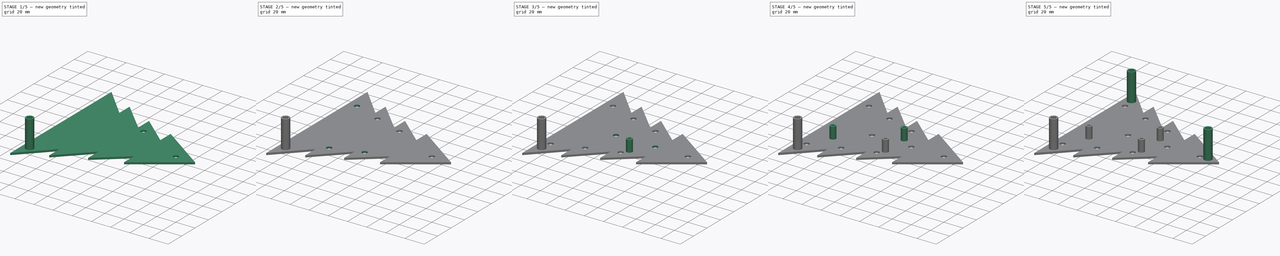
[diagram: build sequence overview — one tinted view per stage of 5, left to right]
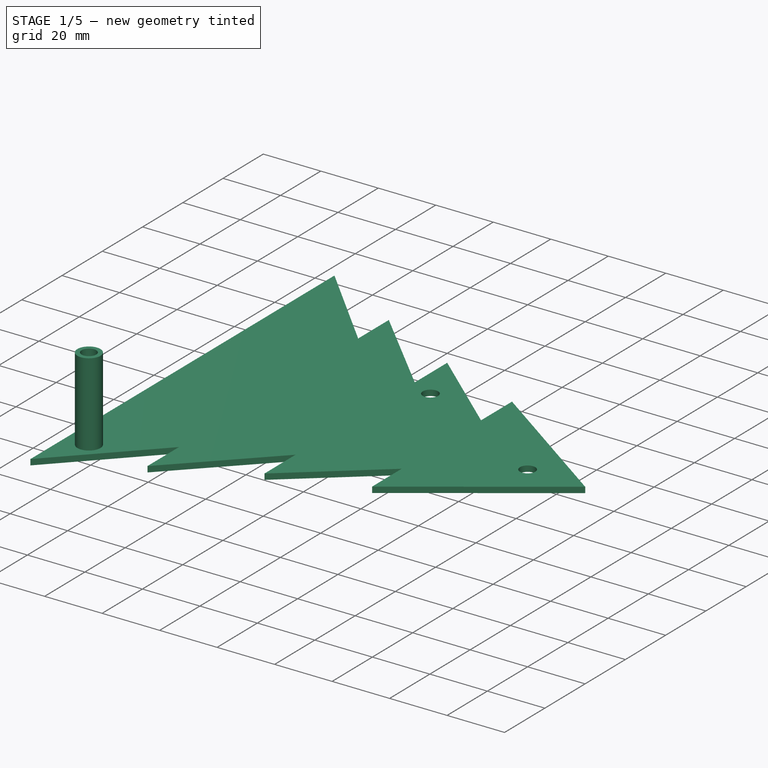
[diagram: stage 1 of 5 — iso view after this stage's code; geometry added in this stage tinted green]
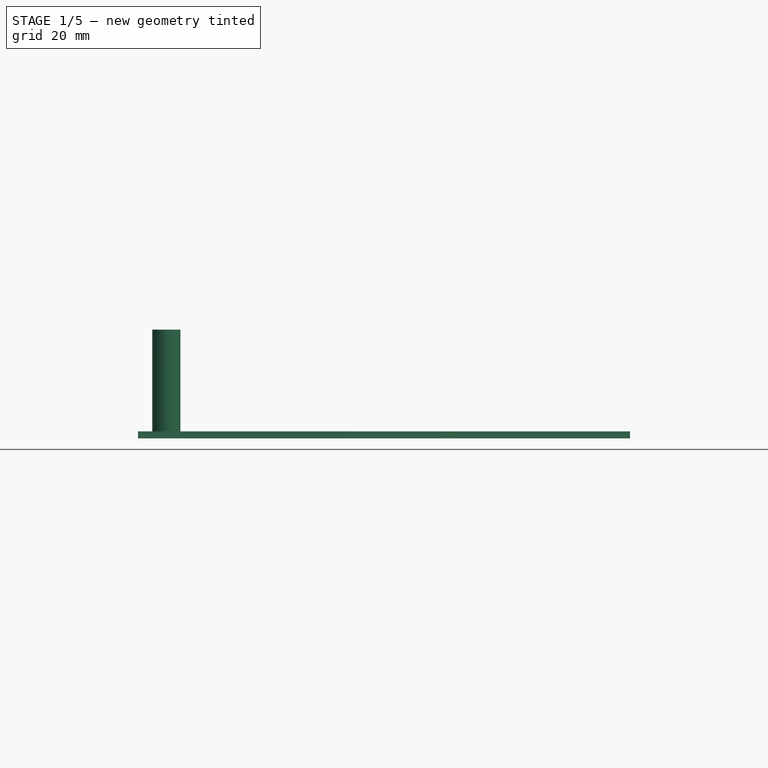
[diagram: stage 1 of 5 — front view after this stage's code; geometry added in this stage tinted green]
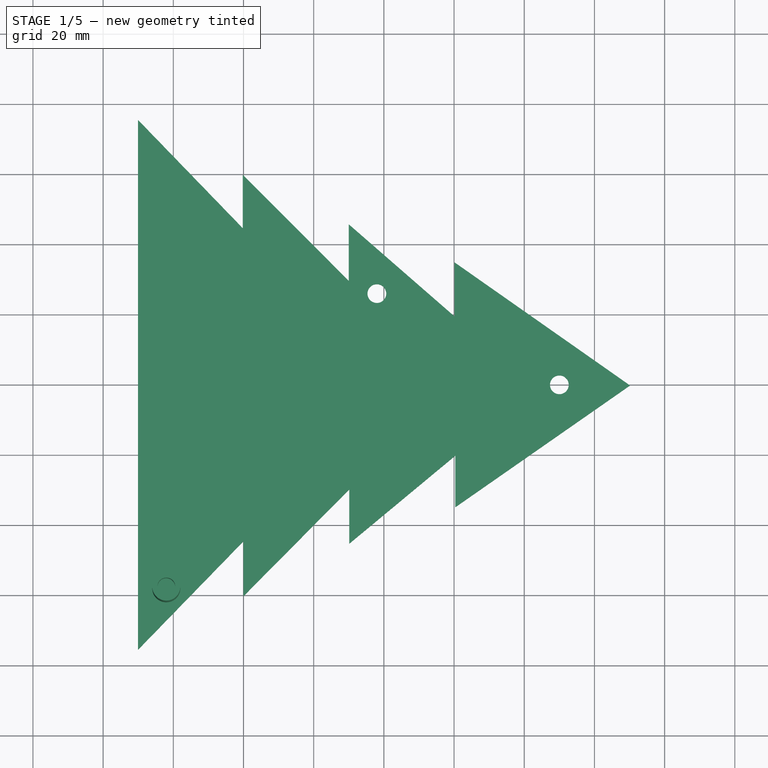
[diagram: stage 1 of 5 — top view after this stage's code; geometry added in this stage tinted green]
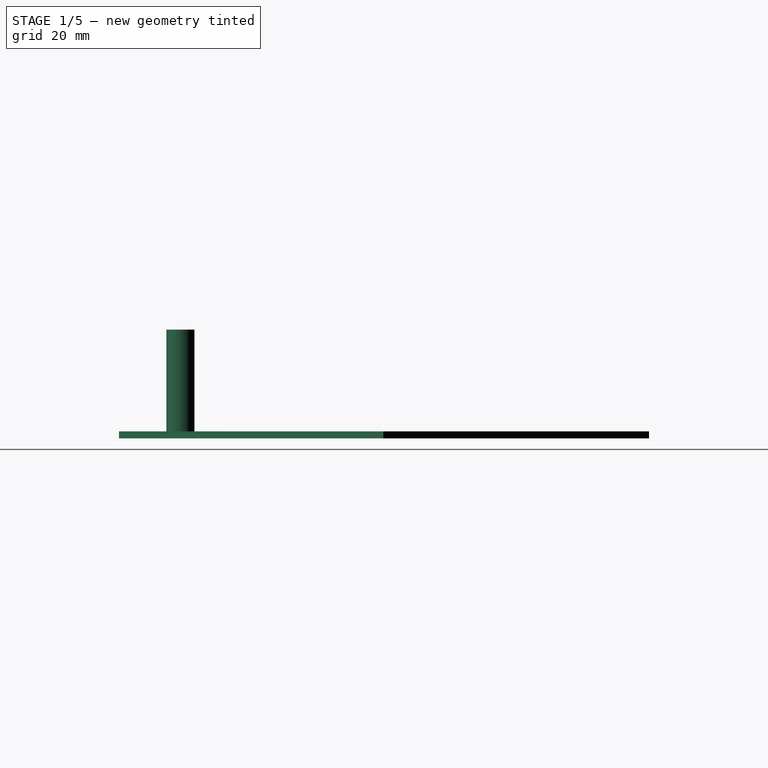
[diagram: stage 1 of 5 — right view after this stage's code; geometry added in this stage tinted green]
FCSTD DOCUMENT  (FreeCAD 0.14R3702 (Git))
Label: piece1M
License: CC-BY 3.0
LicenseURL: http://creativecommons.org/licenses/by/3.0/
objects: Part::Cylinder×21, Part::Cut×15, Part::MultiFuse×5, Sketcher::SketchObject×1, PartDesign::Pad×1, Part::Fuse×1
note: 45 computed .brp shape members not serialized (recipe doc carries the construction recipe); baked Part::Feature solids carry a one-line shape summary decoded from their .brp

FEATURE [Sketcher::SketchObject] Sketch
  sketch-geometry (15):
    g0: LineSegment StartX=-130.081 StartY=75.5194 StartZ=0 EndX=-130.081 EndY=-75.5262 EndZ=0
    g1: LineSegment StartX=-130.081 StartY=75.5194 StartZ=0 EndX=-100.203 EndY=44.6299 EndZ=0
    g2: LineSegment StartX=-100.203 StartY=44.6299 StartZ=0 EndX=-100.203 EndY=59.8569 EndZ=0
    g3: LineSegment StartX=-100.203 StartY=59.8569 StartZ=0 EndX=-70.0242 EndY=29.6287 EndZ=0
    g4: LineSegment StartX=-70.0242 StartY=29.6287 StartZ=0 EndX=-70.0242 EndY=45.7666 EndZ=0
    g5: LineSegment StartX=-70.0242 StartY=45.7666 StartZ=0 EndX=-39.8749 EndY=19.5074 EndZ=0
    g6: LineSegment StartX=-39.8749 StartY=19.5074 StartZ=0 EndX=-39.8749 EndY=34.9099 EndZ=0
    g7: LineSegment StartX=-39.8749 StartY=34.9099 StartZ=0 EndX=10.1503 EndY=-0.184029 EndZ=0
    g8: LineSegment StartX=10.1503 StartY=-0.184029 StartZ=0 EndX=-39.6664 EndY=-34.9007 EndZ=0
    g9: LineSegment StartX=-39.6664 StartY=-34.9007 StartZ=0 EndX=-39.6664 EndY=-20.2105 EndZ=0
    g10: LineSegment StartX=-39.6664 StartY=-20.2105 StartZ=0 EndX=-69.8548 EndY=-45.2726 EndZ=0
    g11: LineSegment StartX=-69.8548 StartY=-45.2726 StartZ=0 EndX=-69.8548 EndY=-29.8027 EndZ=0
    g12: LineSegment StartX=-69.8548 StartY=-29.8027 StartZ=0 EndX=-100.046 EndY=-60.2838 EndZ=0
    g13: LineSegment StartX=-100.046 StartY=-60.2838 StartZ=0 EndX=-100.046 EndY=-44.6211 EndZ=0
    g14: LineSegment StartX=-100.046 StartY=-44.6211 StartZ=0 EndX=-130.081 EndY=-75.5262 EndZ=0
  constraints (22):
    c: Vertical(g0)
    c: Coincident(g1,g0)
    c: Coincident(g1,g2)
    c: Vertical(g2)
    c: Coincident(g2,g3)
    c: Coincident(g3,g4)
    c: Vertical(g4)
    c: Coincident(g4,g5)
    c: Coincident(g5,g6)
    c: Vertical(g6)
    c: Coincident(g6,g7)
    c: Coincident(g7,g8)
    c: Coincident(g8,g9)
    c: Vertical(g9)
    c: Coincident(g9,g10)
    c: Coincident(g10,g11)
    c: Vertical(g11)
    c: Coincident(g11,g12)
    c: Coincident(g12,g13)
    c: Vertical(g13)
    c: Coincident(g13,g14)
    c: Coincident(g14,g0)
FEATURE [Part::Cylinder] Cylinder  label="Led_haut"
  Angle = 360
  Height = 3
  Placement = pos=(-10,0,0) rot=(0,0,1;0rad)
  Radius = 2.67
FEATURE [Part::Cylinder] Cylinder001  label="LedG1"
  Angle = 360
  Height = 2
  Placement = pos=(-62,26,0) rot=(0,0,1;0rad)
  Radius = 2.67
FEATURE [Part::Cylinder] Cylinder002  label="LedG2"
  Angle = 360
  Height = 2
  Placement = pos=(-92,36,0) rot=(0,0,1;0rad)
  Radius = 2.67
FEATURE [PartDesign::Pad] Pad001  label="forme_sapin"
  Length = 2
  Length2 = 100
  Sketch = -> Sketch
  Type = 0
FEATURE [Part::Cylinder] Cylinder011  label="Support_D"
  Angle = 360
  Height = 31
  Placement = pos=(-121,-36,0) rot=(0,0,1;0rad)
  Radius = 4
FEATURE [Part::Cut] Cut003
  Base = -> Pad001
  Tool = -> Cylinder
FEATURE [Part::Cut] Cut004
  Base = -> Cut003
  Tool = -> Cylinder001
FEATURE [Part::Cylinder] Cylinder018  label="Cylindre"
  Angle = 360
  Height = 12
  Placement = pos=(-121,-36,20) rot=(0,0,1;0rad)
  Radius = 2.55
FEATURE [Part::Cut] Cut012
  Base = -> Cylinder011
  Placement = pos=(-1,-22,0) rot=(0,0,1;0rad)
  Tool = -> Cylinder018
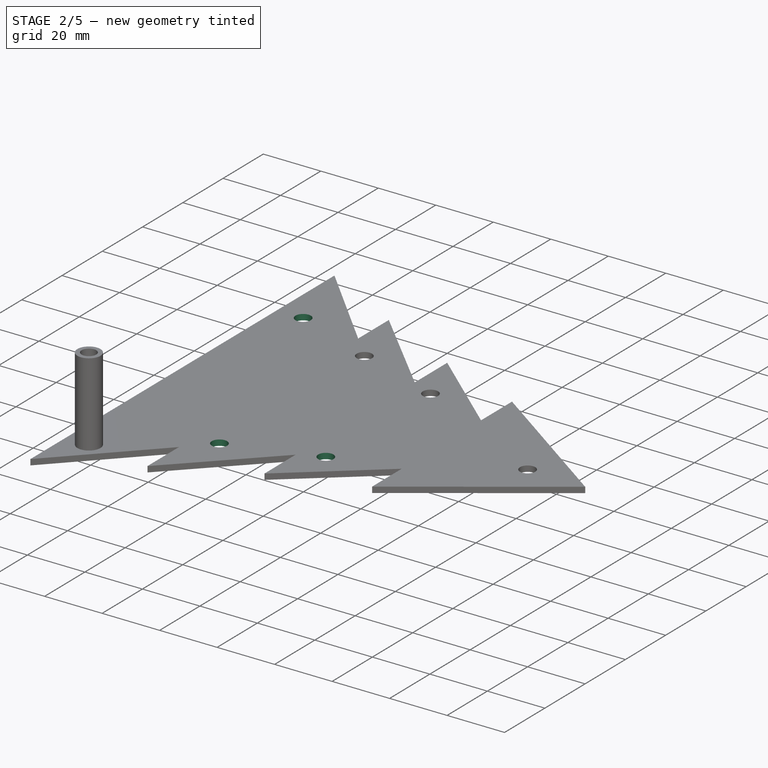
[diagram: stage 2 of 5 — iso view after this stage's code; geometry added in this stage tinted green]
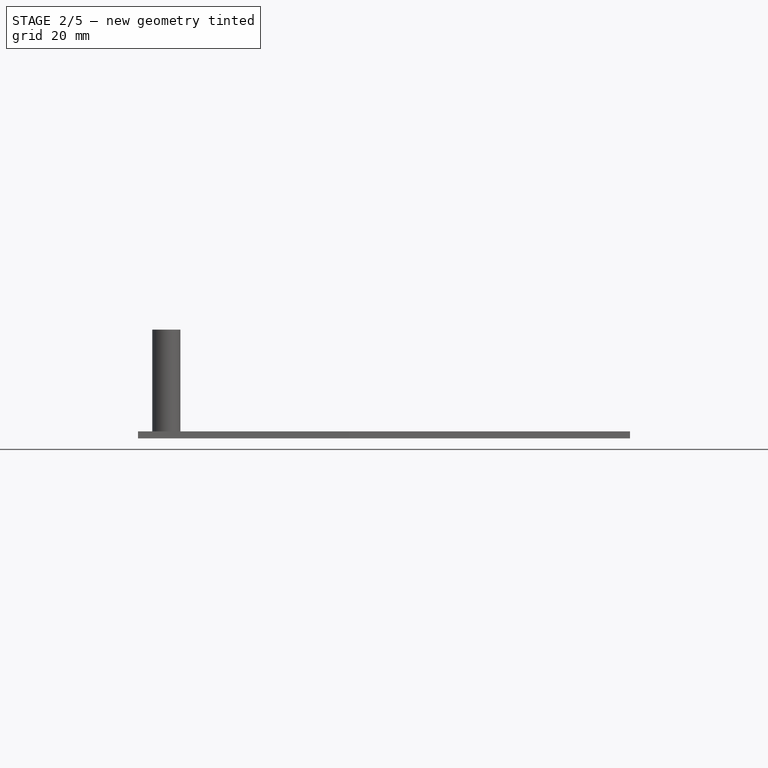
[diagram: stage 2 of 5 — front view after this stage's code; geometry added in this stage tinted green]
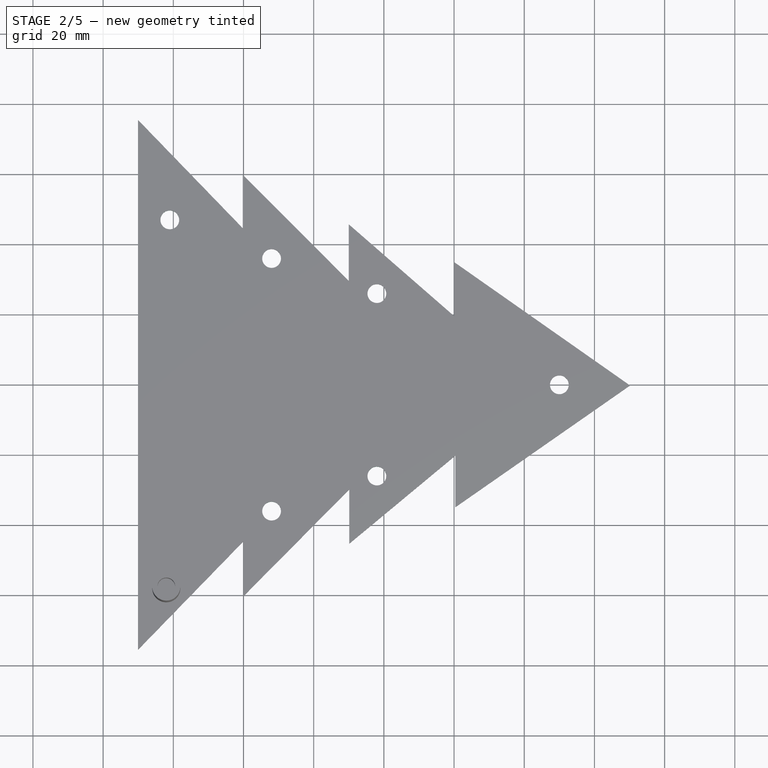
[diagram: stage 2 of 5 — top view after this stage's code; geometry added in this stage tinted green]
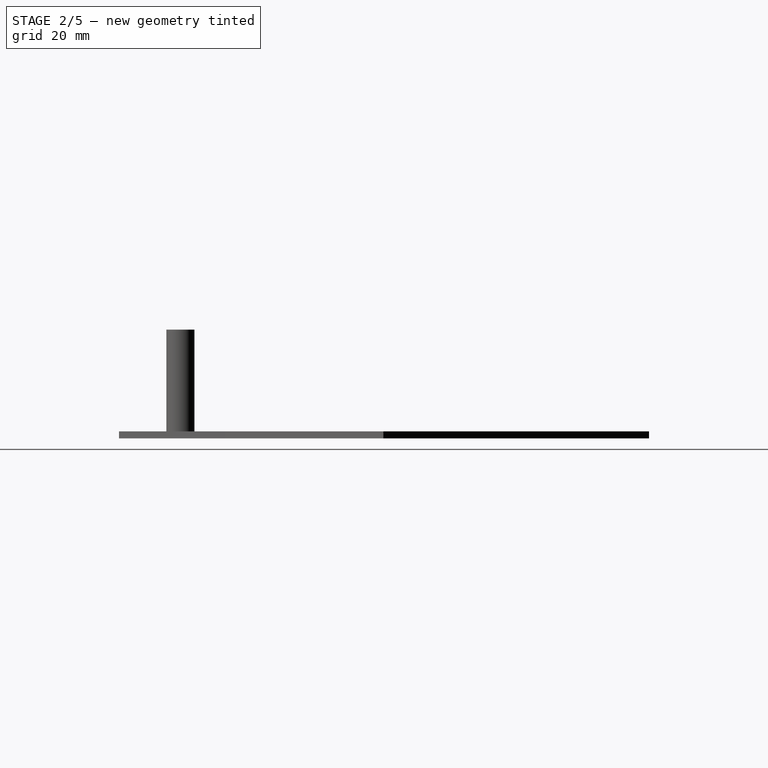
[diagram: stage 2 of 5 — right view after this stage's code; geometry added in this stage tinted green]
FEATURE [Part::Cylinder] Cylinder003  label="LedG3"
  Angle = 360
  Height = 2
  Placement = pos=(-121,47,0) rot=(0,0,1;0rad)
  Radius = 2.67
FEATURE [Part::Cylinder] Cylinder004  label="LedD1"
  Angle = 360
  Height = 2
  Placement = pos=(-62,-26,0) rot=(0,0,1;0rad)
  Radius = 2.67
FEATURE [Part::Cylinder] Cylinder005  label="LedD2"
  Angle = 360
  Height = 2
  Placement = pos=(-92,-36,0) rot=(0,0,1;0rad)
  Radius = 2.67
FEATURE [Part::Cylinder] Cylinder006  label="LedD3"
  Angle = 360
  Height = 2
  Placement = pos=(-121,-46,0) rot=(0,0,1;0rad)
  Radius = 2.67
FEATURE [Part::Cut] Cut005
  Base = -> Cut004
  Tool = -> Cylinder002
FEATURE [Part::Cut] Cut006
  Base = -> Cut005
  Tool = -> Cylinder003
FEATURE [Part::Cut] Cut007
  Base = -> Cut006
  Tool = -> Cylinder004
FEATURE [Part::Cut] Cut008
  Base = -> Cut007
  Tool = -> Cylinder005
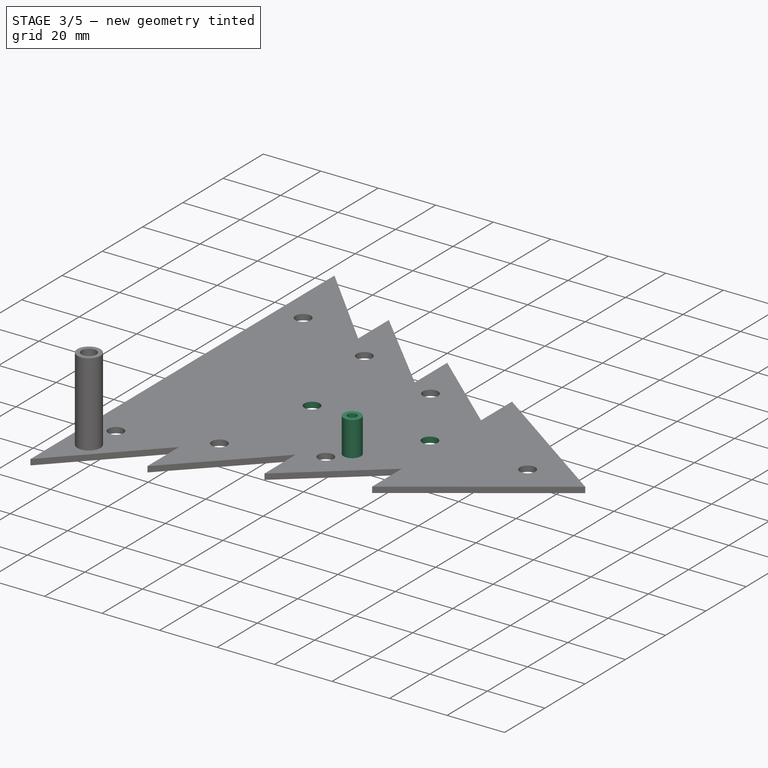
[diagram: stage 3 of 5 — iso view after this stage's code; geometry added in this stage tinted green]
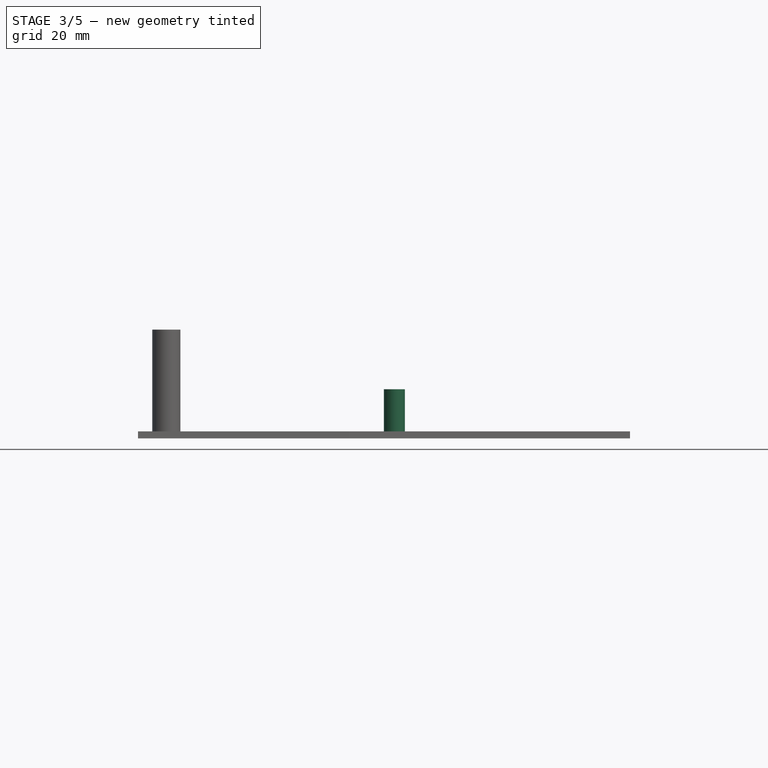
[diagram: stage 3 of 5 — front view after this stage's code; geometry added in this stage tinted green]
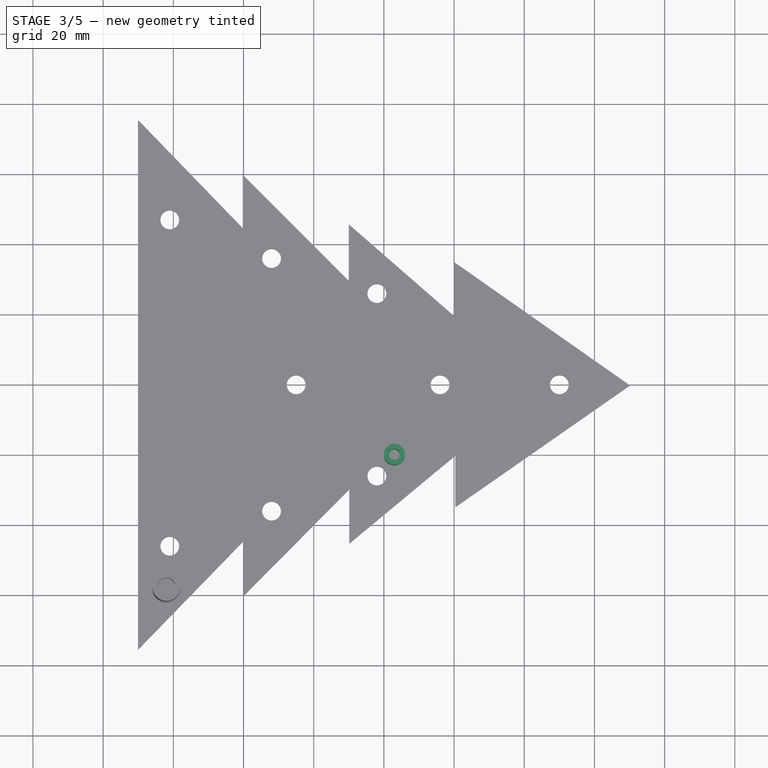
[diagram: stage 3 of 5 — top view after this stage's code; geometry added in this stage tinted green]
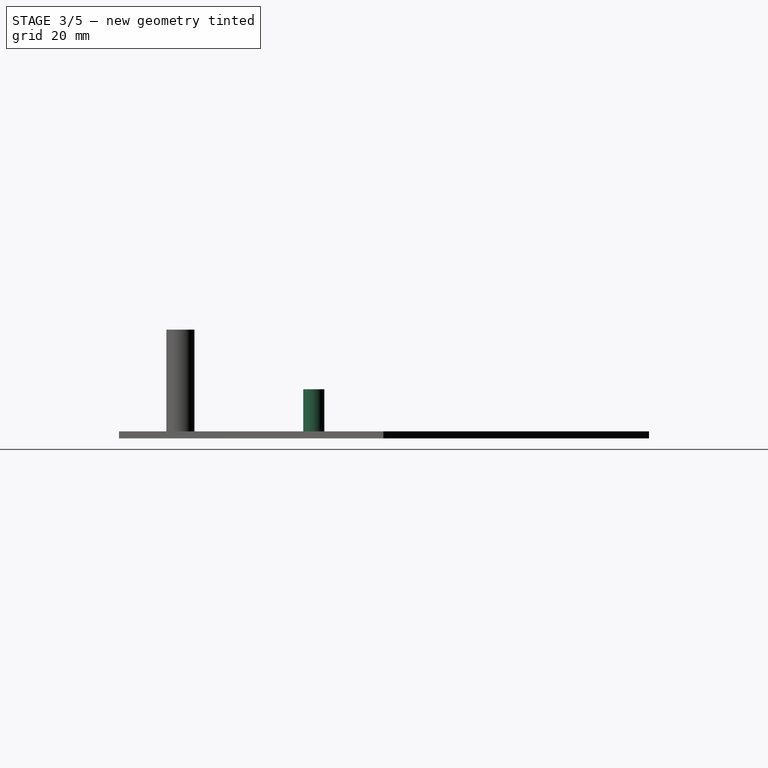
[diagram: stage 3 of 5 — right view after this stage's code; geometry added in this stage tinted green]
FEATURE [Part::Cylinder] Cylinder007  label="LedM1"
  Angle = 360
  Height = 2
  Placement = pos=(-44,0,0) rot=(0,0,1;0rad)
  Radius = 2.67
FEATURE [Part::Cylinder] Cylinder008  label="LedM2"
  Angle = 360
  Height = 2
  Placement = pos=(-85,0,0) rot=(0,0,1;0rad)
  Radius = 2.67
FEATURE [Part::Cylinder] Cylinder014  label="Arduino_Dext"
  Angle = 360
  Height = 13
  Placement = pos=(0,-140,0) rot=(0,0,1;0rad)
  Radius = 3
FEATURE [Part::Cylinder] Cylinder016  label="Arduino_Dint"
  Angle = 360
  Height = 13
  Placement = pos=(0,-140,0) rot=(0,0,1;0rad)
  Radius = 1.55
FEATURE [Part::Cut] Cut002  label="ArduinoD"
  Base = -> Cylinder014
  Placement = pos=(-57,120,1) rot=(0,0,1;0rad)
  Tool = -> Cylinder016
FEATURE [Part::Cut] Cut009
  Base = -> Cut008
  Tool = -> Cylinder006
FEATURE [Part::Cut] Cut010
  Base = -> Cut009
  Tool = -> Cylinder007
FEATURE [Part::Cut] Cut011
  Base = -> Cut010
  Tool = -> Cylinder008
FEATURE [Part::Fuse] Fusion002
  Base = -> Cut002
  Tool = -> Cut011
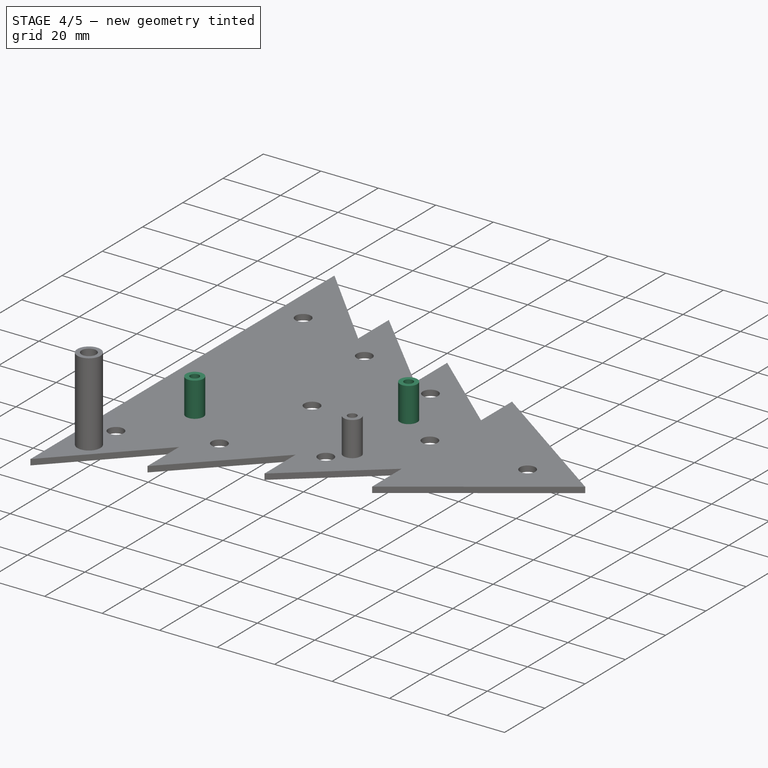
[diagram: stage 4 of 5 — iso view after this stage's code; geometry added in this stage tinted green]
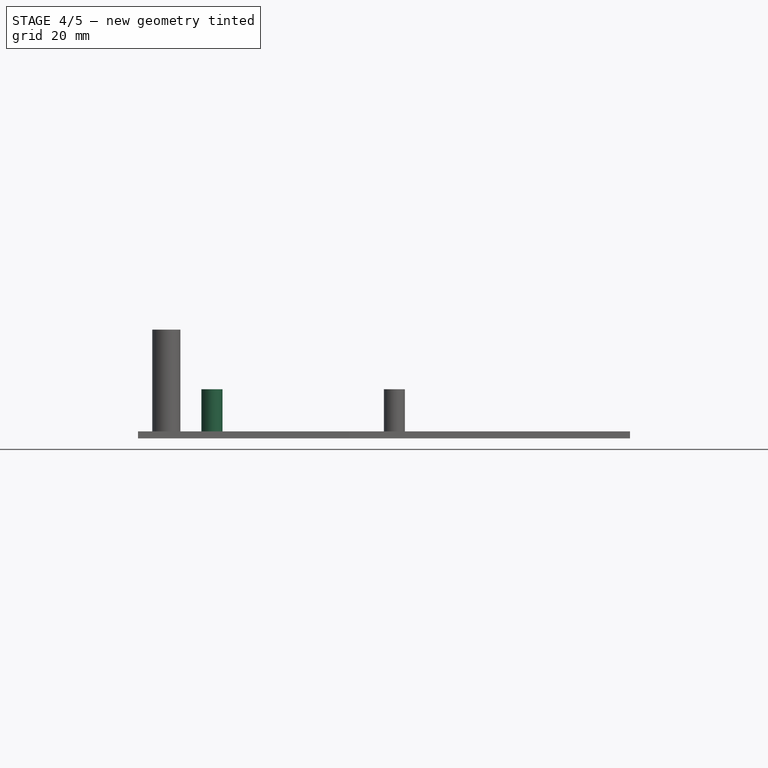
[diagram: stage 4 of 5 — front view after this stage's code; geometry added in this stage tinted green]
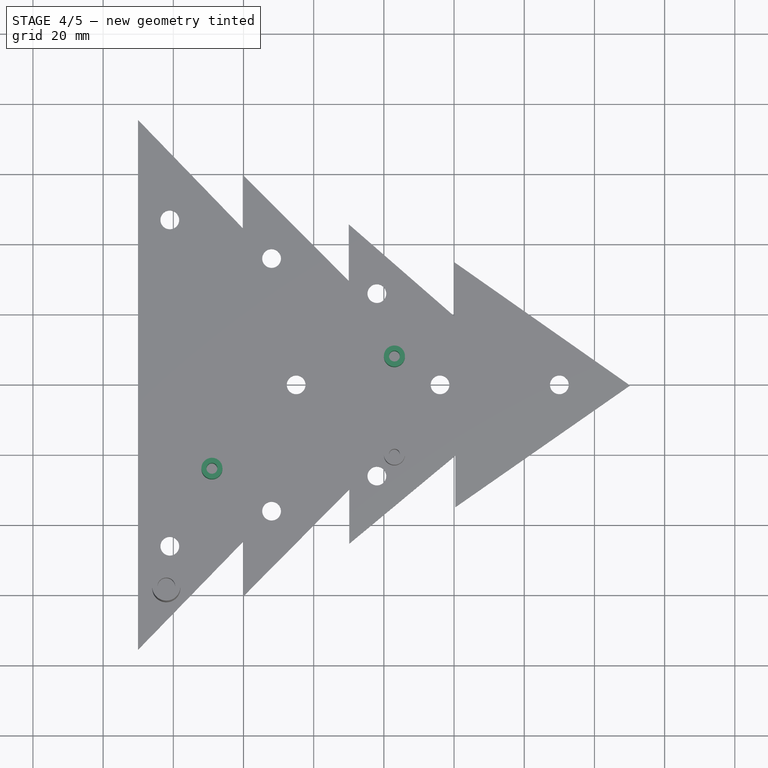
[diagram: stage 4 of 5 — top view after this stage's code; geometry added in this stage tinted green]
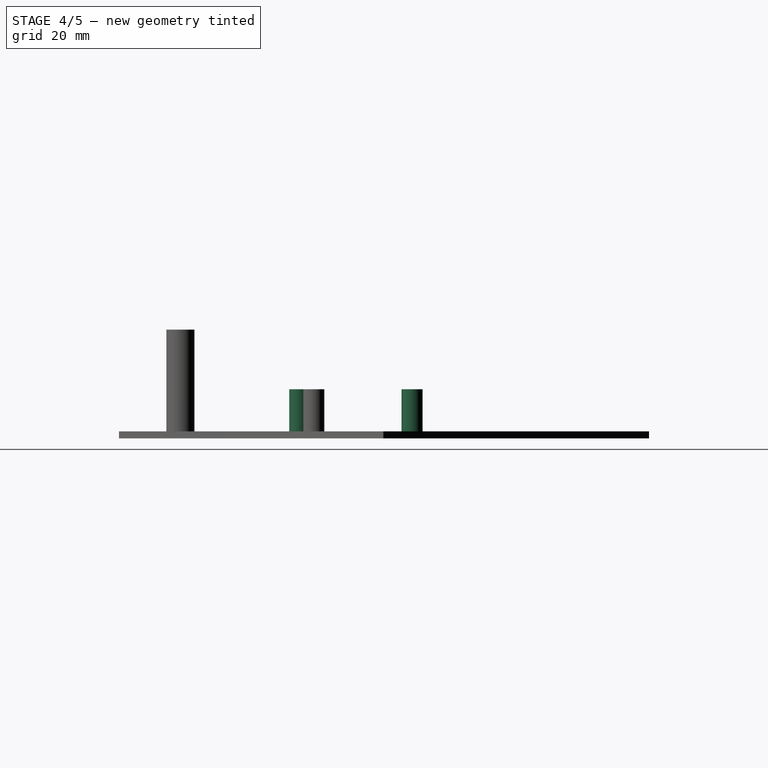
[diagram: stage 4 of 5 — right view after this stage's code; geometry added in this stage tinted green]
FEATURE [Part::Cylinder] Cylinder012  label="Arduino_Bext"
  Angle = 360
  Height = 13
  Placement = pos=(0,-140,0) rot=(0,0,1;0rad)
  Radius = 3
FEATURE [Part::Cylinder] Cylinder013  label="Arduino_Gext"
  Angle = 360
  Height = 13
  Placement = pos=(0,-140,0) rot=(0,0,1;0rad)
  Radius = 3
FEATURE [Part::Cylinder] Cylinder015  label="Arduino_Bint"
  Angle = 360
  Height = 13
  Placement = pos=(0,-140,0) rot=(0,0,1;0rad)
  Radius = 1.55
FEATURE [Part::Cylinder] Cylinder017  label="Arduino_Gint"
  Angle = 360
  Height = 13
  Placement = pos=(0,-140,0) rot=(0,0,1;0rad)
  Radius = 1.55
FEATURE [Part::Cut] Cut  label="Arduino_bas"
  Base = -> Cylinder012
  Placement = pos=(-109,116,1) rot=(0,0,1;0rad)
  Tool = -> Cylinder015
FEATURE [Part::Cut] Cut001  label="ArduinoG"
  Base = -> Cylinder013
  Placement = pos=(-57,148,1) rot=(0,0,1;0rad)
  Tool = -> Cylinder017
FEATURE [Part::MultiFuse] Fusion
  Shapes = -> [Fusion002,Cut001]
FEATURE [Part::MultiFuse] Fusion003
  Shapes = -> [Fusion,Cut]
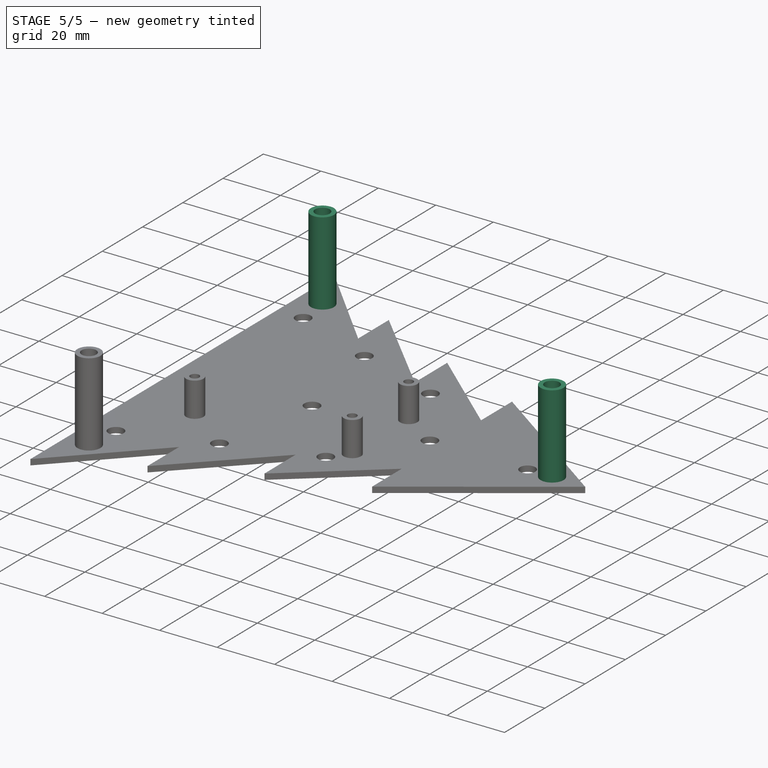
[diagram: stage 5 of 5 — iso view after this stage's code; geometry added in this stage tinted green]
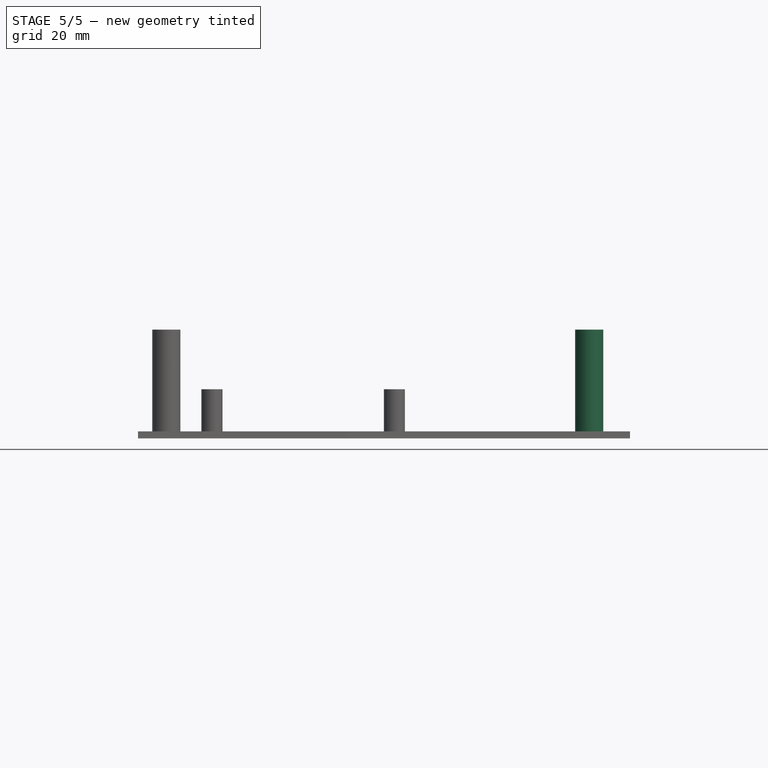
[diagram: stage 5 of 5 — front view after this stage's code; geometry added in this stage tinted green]
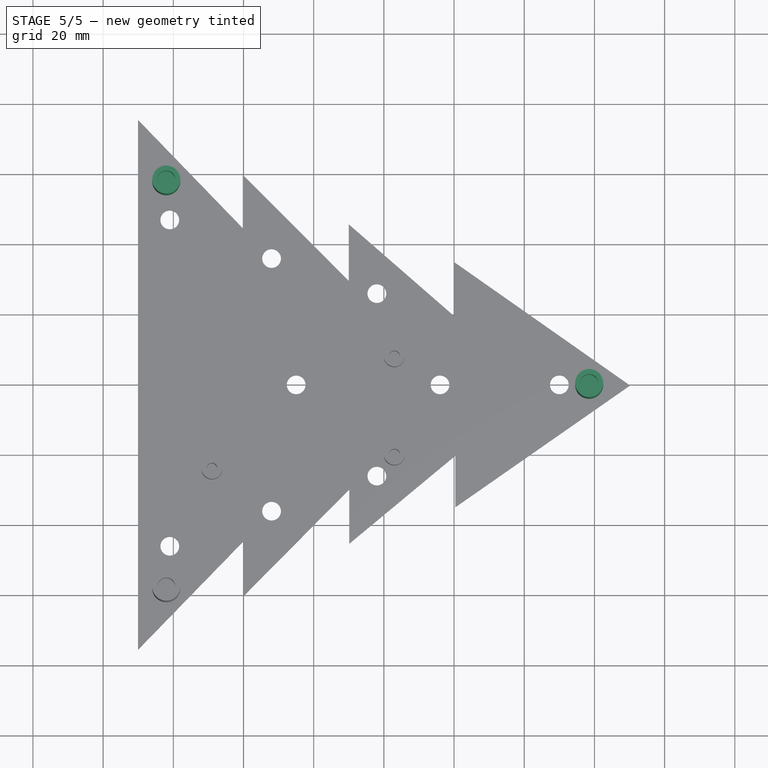
[diagram: stage 5 of 5 — top view after this stage's code; geometry added in this stage tinted green]
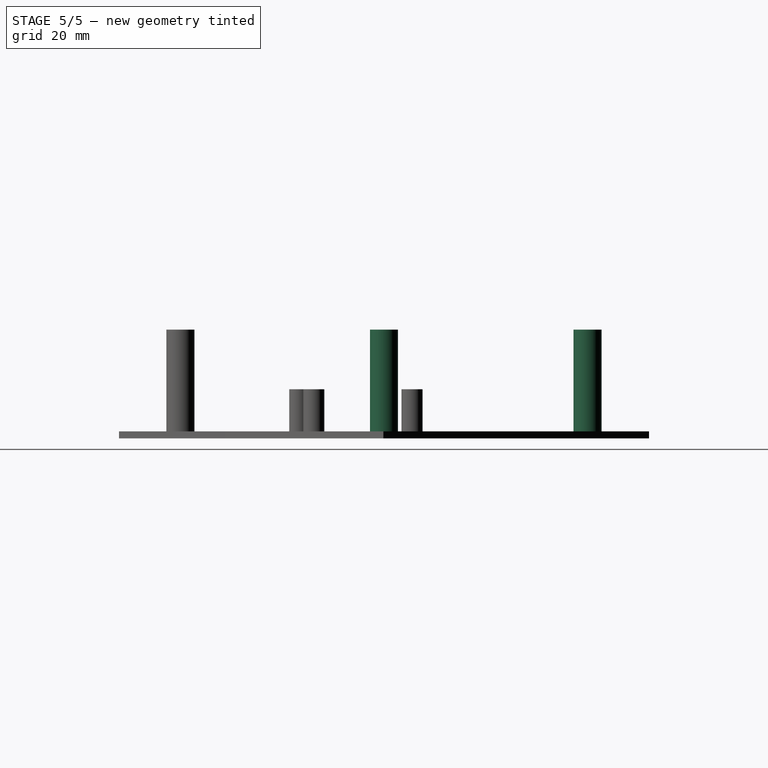
[diagram: stage 5 of 5 — right view after this stage's code; geometry added in this stage tinted green]
FEATURE [Part::Cylinder] Cylinder009  label="Support_haut"
  Angle = 360
  Height = 31
  Placement = pos=(-2,0,0) rot=(0,0,1;0rad)
  Radius = 4
FEATURE [Part::Cylinder] Cylinder010  label="Support_G"
  Angle = 360
  Height = 31
  Placement = pos=(-121,39,0) rot=(0,0,1;0rad)
  Radius = 4
FEATURE [Part::Cylinder] Cylinder019  label="Cylindre001"
  Angle = 360
  Height = 12
  Placement = pos=(-2,0,20) rot=(0,0,1;0rad)
  Radius = 2.55
FEATURE [Part::Cylinder] Cylinder020  label="Cylindre002"
  Angle = 360
  Height = 12
  Placement = pos=(-121,39,20) rot=(0,0,1;0rad)
  Radius = 2.55
FEATURE [Part::Cut] Cut013
  Base = -> Cylinder009
  Placement = pos=(0.5,0,0) rot=(0,0,1;0rad)
  Tool = -> Cylinder019
FEATURE [Part::Cut] Cut014
  Base = -> Cylinder010
  Placement = pos=(-1,19,0) rot=(0,0,1;0rad)
  Tool = -> Cylinder020
FEATURE [Part::MultiFuse] Fusion004
  Shapes = -> [Fusion003,Cut012]
FEATURE [Part::MultiFuse] Fusion005
  Shapes = -> [Fusion004,Cut013]
FEATURE [Part::MultiFuse] Fusion006
  Shapes = -> [Fusion005,Cut014]
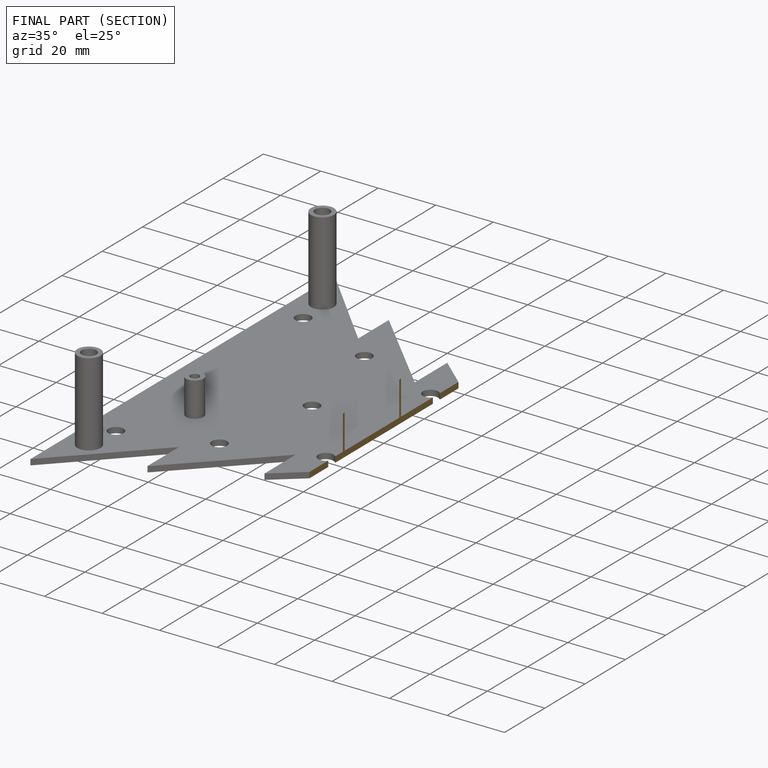
[diagram: finished part — half-section view (interior)]
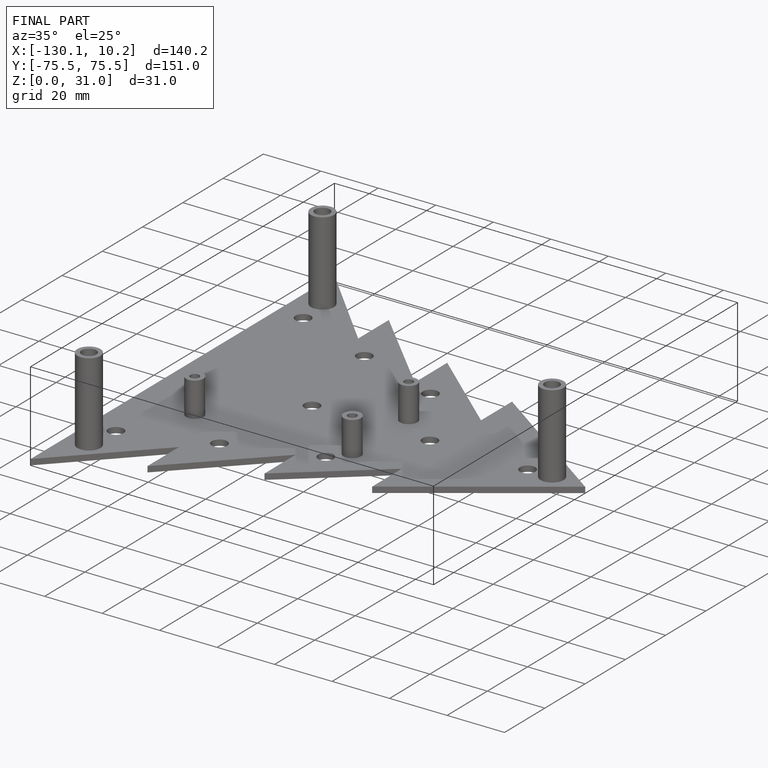
[diagram: finished part — iso view with bounding-box wireframe]
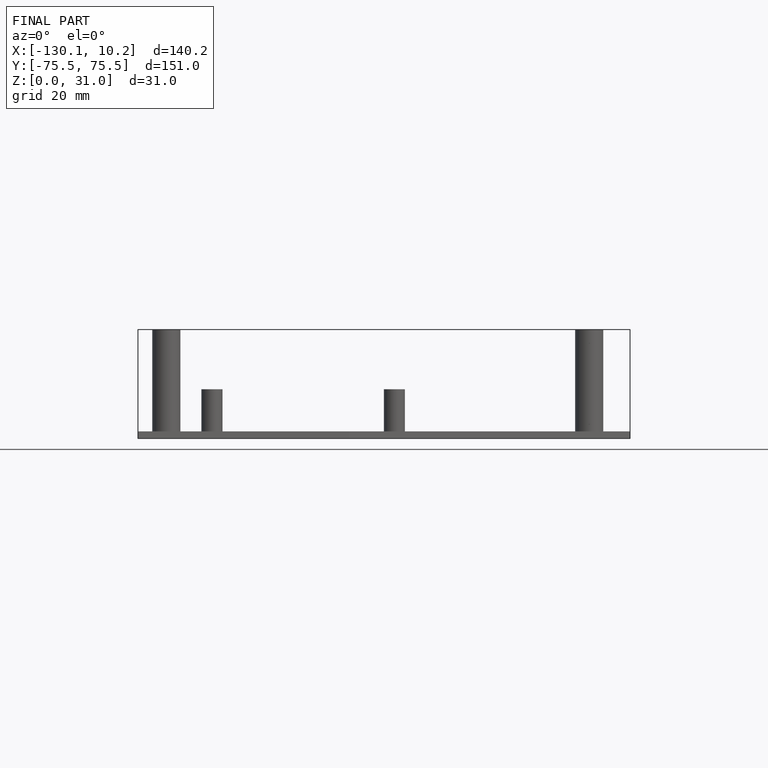
[diagram: finished part — front view with bounding-box wireframe]
